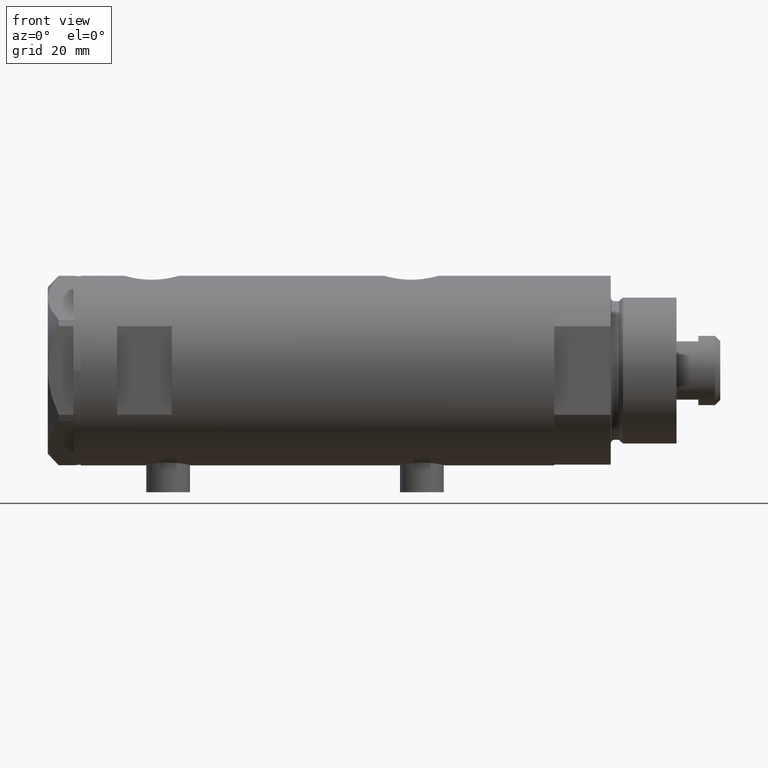
[diagram: clean part render]
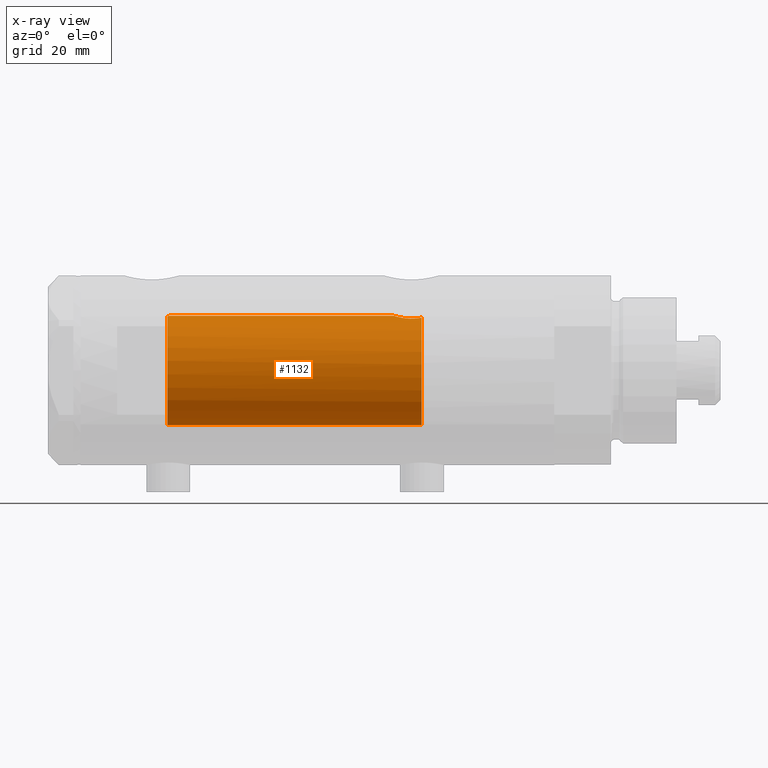
[diagram: x-ray — body ghosted, one internal face saturated and labeled with its STEP entity id]
A machine part, front view, then the same camera in x-ray: the body is ghosted and one INTERNAL B-rep face — a face not visible from any outside direction — is saturated and labeled: STEP entity #1132.
In plain terms, the highlighted cylindrical surface (partial cylindrical patch) has radius 15 mm, axis along (1, 0, -0).
Its self-contained STEP definition (entity closure, byte-faithful):
#18 = EDGE_CURVE ( 'NONE', #3002, #1389, #3160, .T. ) ;
#34 = CARTESIAN_POINT ( 'NONE',  ( 0.000000000000000000, 0.000000000000000000, 64.95000000000000284 ) ) ;
#66 = EDGE_LOOP ( 'NONE', ( #1044, #1598, #4086, #823, #1891, #2956 ) ) ;
#122 = CARTESIAN_POINT ( 'NONE',  ( -15.00000000000000000, 0.000000000000000000, 41.15000000000000568 ) ) ;
#149 = CARTESIAN_POINT ( 'NONE',  ( 14.34975251533960972, -4.369876551371485007, -27.79556915326690003 ) ) ;
#242 = DIRECTION ( 'NONE',  ( 0.000000000000000000, 0.000000000000000000, -1.000000000000000000 ) ) ;
#243 = CARTESIAN_POINT ( 'NONE',  ( 14.84932558218766374, -2.130404495561641465, -21.42080824108239412 ) ) ;
#272 = CARTESIAN_POINT ( 'NONE',  ( 14.20306263110924405, -4.824235442178580691, -25.65697448853073581 ) ) ;
#346 = CARTESIAN_POINT ( 'NONE',  ( 14.92407199062795264, -1.522195385345413321, -21.17140325442135662 ) ) ;
#397 = CARTESIAN_POINT ( 'NONE',  ( 14.88991265662211028, -1.844897518020539806, 40.98145184759943049 ) ) ;
#426 = FACE_OUTER_BOUND ( 'NONE', #66, .T. ) ;
#442 = CARTESIAN_POINT ( 'NONE',  ( 14.32244321296799860, -4.457997918233771451, -27.59574128289985850 ) ) ;
#453 = CARTESIAN_POINT ( 'NONE',  ( 15.00000000000000000, 1.836970198721029589E-15, 64.95000000000000284 ) ) ;
#596 = B_SPLINE_CURVE_WITH_KNOTS ( 'NONE', 3,
 ( #4849, #4139, #4474, #1091, #397, #1143 ),
 .UNSPECIFIED., .F., .F.,
 ( 4, 2, 4 ),
 ( 0.000000000000000000, 0.001127502765641914297, 0.002255005531283828593 ),
 .UNSPECIFIED. ) ;
#619 = CARTESIAN_POINT ( 'NONE',  ( 14.43644656981403784, -4.078404662680470416, -23.14388700693203305 ) ) ;
#697 = CARTESIAN_POINT ( 'NONE',  ( 0.000000000000000000, 0.000000000000000000, -28.55000000000000426 ) ) ;
#823 = ORIENTED_EDGE ( 'NONE', *, *, #18, .T. ) ;
#885 = CARTESIAN_POINT ( 'NONE',  ( -15.00000000000000000, 0.000000000000000000, 64.95000000000000284 ) ) ;
#898 = DIRECTION ( 'NONE',  ( 1.000000000000000000, 0.000000000000000000, 0.000000000000000000 ) ) ;
#919 = CARTESIAN_POINT ( 'NONE',  ( 14.99515112652465199, -0.4406751264979772986, -20.94502383783955679 ) ) ;
#1029 = CARTESIAN_POINT ( 'NONE',  ( 14.90147407984932215, -1.728341345944415020, -21.24518471054712521 ) ) ;
#1044 = ORIENTED_EDGE ( 'NONE', *, *, #1136, .F. ) ;
#1082 = CARTESIAN_POINT ( 'NONE',  ( -15.00000000000000000, 0.000000000000000000, -28.55000000000000426 ) ) ;
#1091 = CARTESIAN_POINT ( 'NONE',  ( 14.93072566710542759, -1.485875122249611380, 40.84936402249112319 ) ) ;
#1132 = ADVANCED_FACE ( 'NONE', ( #426 ), #2598, .F. ) ;
#1136 = EDGE_CURVE ( 'NONE', #2085, #3177, #596, .T. ) ;
#1143 = CARTESIAN_POINT ( 'NONE',  ( 14.84107812795283543, -2.177705214210584828, 41.15000000000000568 ) ) ;
#1169 = CARTESIAN_POINT ( 'NONE',  ( 15.00000000000000000, 0.000000000000000000, 40.63000000000000966 ) ) ;
#1297 = CARTESIAN_POINT ( 'NONE',  ( 14.21409732373055235, -4.791629916966810399, -26.31666194930576097 ) ) ;
#1304 = CARTESIAN_POINT ( 'NONE',  ( 15.00000000000000711, -0.2202572108858107114, -20.93000000000001393 ) ) ;
#1389 = VERTEX_POINT ( 'NONE', #1082 ) ;
#1392 = CARTESIAN_POINT ( 'NONE',  ( 14.25262067516876563, -4.676002972663385826, -24.56007766936820857 ) ) ;
#1468 = CARTESIAN_POINT ( 'NONE',  ( 14.96115036783316476, -1.099537740915841999, -21.05195320307556983 ) ) ;
#1523 = DIRECTION ( 'NONE',  ( -0.000000000000000000, -0.000000000000000000, -1.000000000000000000 ) ) ;
#1598 = ORIENTED_EDGE ( 'NONE', *, *, #4000, .T. ) ;
#1712 = CARTESIAN_POINT ( 'NONE',  ( 0.000000000000000000, 0.000000000000000000, 41.15000000000000568 ) ) ;
#1737 = CARTESIAN_POINT ( 'NONE',  ( 14.22309965397743881, -4.765043141843726460, -24.99152599935061403 ) ) ;
#1797 = CARTESIAN_POINT ( 'NONE',  ( 15.00000000000000000, 5.903971672140998536E-16, -20.93000000000000682 ) ) ;
#1891 = ORIENTED_EDGE ( 'NONE', *, *, #3461, .F. ) ;
#1989 = CARTESIAN_POINT ( 'NONE',  ( 14.44326150853631674, -4.050884606120830789, -28.37125141633182324 ) ) ;
#2010 = LINE ( 'NONE', #885, #2917 ) ;
#2019 = DIRECTION ( 'NONE',  ( 0.000000000000000000, 0.000000000000000000, 1.000000000000000000 ) ) ;
#2063 = EDGE_CURVE ( 'NONE', #3002, #4194, #4660, .T. ) ;
#2085 = VERTEX_POINT ( 'NONE', #1169 ) ;
#2134 = CARTESIAN_POINT ( 'NONE',  ( 14.34628134724921367, -4.381244691236324762, -23.72878815142589914 ) ) ;
#2138 = CARTESIAN_POINT ( 'NONE',  ( 14.25504518260038367, -4.668623517111868182, -26.96883357743742948 ) ) ;
#2326 = CARTESIAN_POINT ( 'NONE',  ( 15.00000000000000000, 5.903971672140998536E-16, -20.93000000000000682 ) ) ;
#2379 = DIRECTION ( 'NONE',  ( -0.000000000000000000, -0.000000000000000000, -1.000000000000000000 ) ) ;
#2482 = CARTESIAN_POINT ( 'NONE',  ( 14.81950049697035432, -2.327767485914375101, -21.52364155297843240 ) ) ;
#2505 = CARTESIAN_POINT ( 'NONE',  ( 14.22451481615456537, -4.760833639973960807, -26.53489737323501174 ) ) ;
#2598 = CYLINDRICAL_SURFACE ( 'NONE', #3022, 15.00000000000000000 ) ;
#2665 = EDGE_CURVE ( 'NONE', #3203, #3177, #4307, .T. ) ;
#2683 = CARTESIAN_POINT ( 'NONE',  ( 14.47783132931172290, -3.923314924907242762, -28.55000000000000426 ) ) ;
#2869 = CARTESIAN_POINT ( 'NONE',  ( 14.27514547798118727, -4.607205943968956774, -27.18323400470213258 ) ) ;
#2888 = DIRECTION ( 'NONE',  ( -1.000000000000000000, 0.000000000000000000, 0.000000000000000000 ) ) ;
#2889 = CARTESIAN_POINT ( 'NONE',  ( 14.27197760516740566, -4.616990629359349008, -24.34847664789031185 ) ) ;
#2917 = VECTOR ( 'NONE', #2379, 1000.000000000000000 ) ;
#2956 = ORIENTED_EDGE ( 'NONE', *, *, #2665, .T. ) ;
#3002 = VERTEX_POINT ( 'NONE', #4490 ) ;
#3022 = AXIS2_PLACEMENT_3D ( 'NONE', #34, #1523, #3364 ) ;
#3160 = CIRCLE ( 'NONE', #4558, 15.00000000000000000 ) ;
#3177 = VERTEX_POINT ( 'NONE', #4627 ) ;
#3203 = VERTEX_POINT ( 'NONE', #122 ) ;
#3233 = CARTESIAN_POINT ( 'NONE',  ( 14.31869582846766420, -4.469999665079939177, -23.93341717164176075 ) ) ;
#3289 = CARTESIAN_POINT ( 'NONE',  ( 14.20337158465803995, -4.823330345081481951, -25.87770046271848656 ) ) ;
#3364 = DIRECTION ( 'NONE',  ( -1.000000000000000000, 0.000000000000000000, 0.000000000000000000 ) ) ;
#3372 = AXIS2_PLACEMENT_3D ( 'NONE', #1712, #2019, #898 ) ;
#3461 = EDGE_CURVE ( 'NONE', #3203, #1389, #2010, .T. ) ;
#3597 = CARTESIAN_POINT ( 'NONE',  ( 14.72393259815880739, -2.889670333725826268, -21.86734187351658676 ) ) ;
#3800 = CARTESIAN_POINT ( 'NONE',  ( 14.41003090252048047, -4.166800656874105613, -28.18268298816284556 ) ) ;
#3904 = LINE ( 'NONE', #453, #4549 ) ;
#4000 = EDGE_CURVE ( 'NONE', #2085, #4194, #3904, .T. ) ;
#4086 = ORIENTED_EDGE ( 'NONE', *, *, #2063, .F. ) ;
#4139 = CARTESIAN_POINT ( 'NONE',  ( 15.00000000000000178, -0.3814279736150836264, 40.63000000000000966 ) ) ;
#4194 = VERTEX_POINT ( 'NONE', #1797 ) ;
#4307 = CIRCLE ( 'NONE', #3372, 15.00000000000000000 ) ;
#4380 = CARTESIAN_POINT ( 'NONE',  ( 14.65212098865645807, -3.226533246080110828, -22.14232232038904868 ) ) ;
#4474 = CARTESIAN_POINT ( 'NONE',  ( 14.98548564511672332, -0.7547276364900009638, 40.67464006893851547 ) ) ;
#4490 = CARTESIAN_POINT ( 'NONE',  ( 14.47783132931172290, -3.923314924907242762, -28.55000000000000426 ) ) ;
#4549 = VECTOR ( 'NONE', #4589, 1000.000000000000000 ) ;
#4558 = AXIS2_PLACEMENT_3D ( 'NONE', #697, #242, #2888 ) ;
#4589 = DIRECTION ( 'NONE',  ( -0.000000000000000000, -0.000000000000000000, -1.000000000000000000 ) ) ;
#4627 = CARTESIAN_POINT ( 'NONE',  ( 14.84107812795283543, -2.177705214210584828, 41.15000000000000568 ) ) ;
#4660 = B_SPLINE_CURVE_WITH_KNOTS ( 'NONE', 3,
 ( #2683, #1989, #3800, #149, #442, #2869, #2138, #2505, #1297, #3289, #272, #4757, #1737, #1392, #2889, #3233, #2134, #619, #4730, #4380, #3597, #2482, #243, #1029, #346, #1468, #4736, #919, #1304, #2326 ),
 .UNSPECIFIED., .F., .F.,
 ( 4, 2, 2, 2, 2, 2, 2, 2, 2, 2, 2, 2, 2, 2, 4 ),
 ( 0.004596804545076117396, 0.005257681651279789807, 0.005918558757483462218, 0.006579435863687135497, 0.007240312969890807041, 0.007901190076094480319, 0.008562067182298151863, 0.009222944288501825141, 0.009883821394705498420, 0.01120557560711283283, 0.01252732981952016551, 0.01318820692572383185, 0.01384908403192749646, 0.01450996113813116106, 0.01517083824433482393 ),
 .UNSPECIFIED. ) ;
#4730 = CARTESIAN_POINT ( 'NONE',  ( 14.50707389569938144, -3.826221796891146276, -22.78590118433638878 ) ) ;
#4736 = CARTESIAN_POINT ( 'NONE',  ( 14.97568382207727744, -0.8818423530316272796, -21.00612557602503827 ) ) ;
#4757 = CARTESIAN_POINT ( 'NONE',  ( 14.21290818894239472, -4.795151355012498229, -25.21294801938931585 ) ) ;
#4849 = CARTESIAN_POINT ( 'NONE',  ( 15.00000000000000000, 0.000000000000000000, 40.63000000000000966 ) ) ;